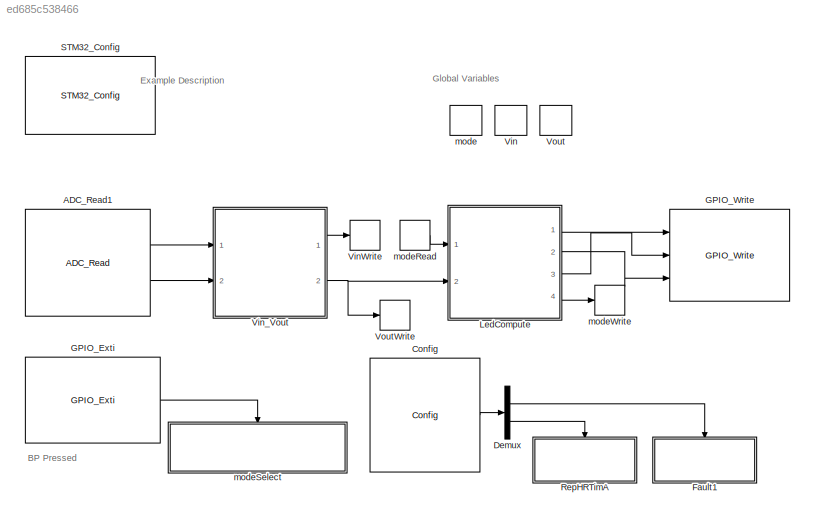
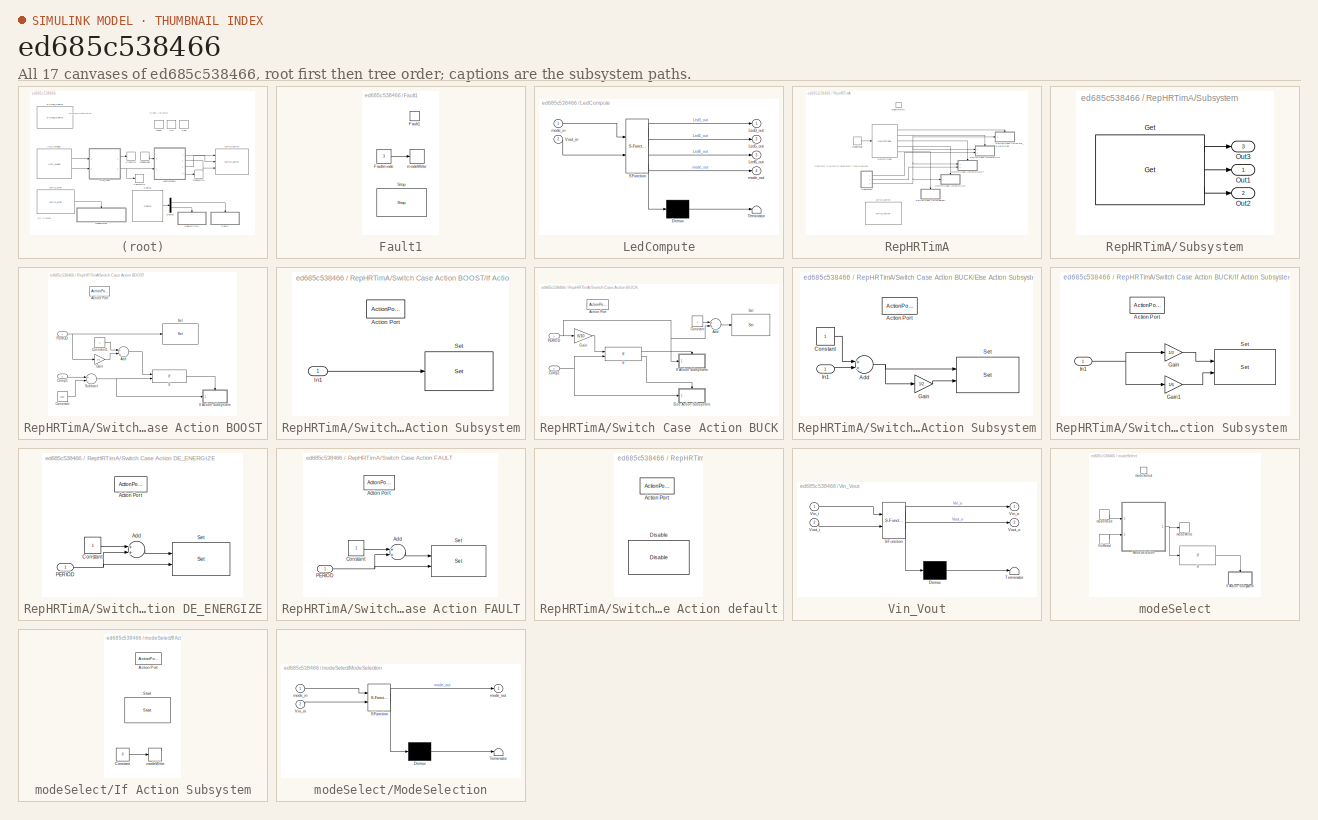
[diagram: thumbnail index - all 17 canvases of the model, root first then tree order]
MODEL slx_ed685c538466
KIND model
CONFIG AbsTol = auto
CONFIG EnableMultiTasking = on
CONFIG FixedStep = auto
CONFIG MaxStep = auto
CONFIG MinStep = auto
CONFIG RelTol = 1e-3
CONFIG SampleTimeConstraint = Unconstrained
CONFIG Solver = FixedStepDiscrete
CONFIG SolverName = FixedStepDiscrete
CONFIG StartTime = 0.0
CONFIG StopTime = 10.0
BLOCK [Reference] ADC_Read1  REF=ADC_Lib/ADC_Read
  Ports = [0, 2]
  SourceBlock = ADC_Lib/ADC_Read
  SourceProductName = Target Support Package - STM32 Adapter
  SourceType = ADC_Read
BLOCK [Reference] Config  REF=HRTIMERS_Lib/Config
  Ports = [0, 1]
  SourceBlock = HRTIMERS_Lib/Config
  SourceProductName = Target Support Package - STM32 Adapter
  SourceType = HRTimer_Config
BLOCK [Demux] Demux
  DisplayOption = bar
  Outputs = 2
  Ports = [1, 2]
BLOCK [SubSystem] Fault1
  Ports = [0, 0, 0, 1]
  RequestExecContextInheritance = off
  TreatAsAtomicUnit = on
BLOCK [TriggerPort] Fault1/Fault1
  Ports = []
  StatesWhenEnabling = held
  TriggerType = function-call
  VariantControl = Variant
BLOCK [Constant] Fault1/Faultmode
  OutDataTypeStr = uint8
  Value = 3
BLOCK [Reference] Fault1/Stop  REF=HRTIMERS_Lib/Stop
  Ports = []
  SourceBlock = HRTIMERS_Lib/Stop
  SourceProductName = Target Support Package - STM32 Adapter
  SourceType = HRTimer_Stop
BLOCK [DataStoreWrite] Fault1/modeWrite
  DataStoreName = mode
  Ports = [1]
BLOCK [Reference] GPIO_Exti  REF=GPIO_Lib/GPIO_Exti
  Ports = [0, 1]
  Priority = 0
  SourceBlock = GPIO_Lib/GPIO_Exti
  SourceProductName = Target Support Package - STM32 Adapter
  SourceType = GPIO_Exti
BLOCK [Reference] GPIO_Write  REF=GPIO_Lib/GPIO_Write
  Ports = [3]
  SourceBlock = GPIO_Lib/GPIO_Write
  SourceProductName = Target Support Package - STM32 Adapter
  SourceType = GPIO_Write
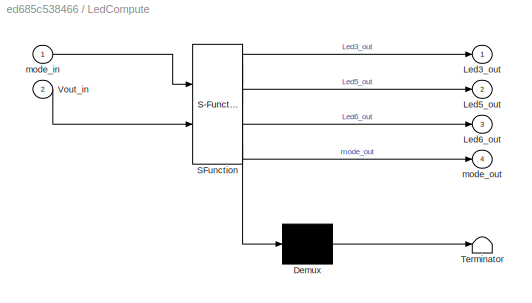
BLOCK [SubSystem] LedCompute
  ErrorFcn = Stateflow.Translate.translate
  PermitHierarchicalResolution = ExplicitOnly
  Ports = [2, 4]
  RequestExecContextInheritance = off
  SFBlockType = MATLAB Function
  TreatAsAtomicUnit = on
BLOCK [Demux] LedCompute/ Demux 
  Outputs = 1
  Ports = [1, 1]
BLOCK [S-Function] LedCompute/ SFunction 
  EnableBusSupport = on
  FunctionName = sf_sfun
  PortCounts = [2 5]
  Ports = [2, 5]
  SFcnIsStateOwnerBlock = off
  SFunctionDeploymentMode = off
  Tag = Stateflow S-Function BuckBoost 3
BLOCK [Terminator] LedCompute/ Terminator 
BLOCK [Outport] LedCompute/Led3_out
  IconDisplay = Port number
BLOCK [Outport] LedCompute/Led5_out
  IconDisplay = Port number
  Port = 2
BLOCK [Outport] LedCompute/Led6_out
  IconDisplay = Port number
  Port = 3
BLOCK [Inport] LedCompute/Vout_in
  IconDisplay = Port number
  Port = 2
BLOCK [Inport] LedCompute/mode_in
  IconDisplay = Port number
BLOCK [Outport] LedCompute/mode_out
  IconDisplay = Port number
  Port = 4
BLOCK [SubSystem] RepHRTimA
  Ports = [0, 0, 0, 1]
  RequestExecContextInheritance = off
  TreatAsAtomicUnit = on
BLOCK [Reference] RepHRTimA/GPIO_Write  REF=GPIO_Lib/GPIO_Write
  Ports = []
  SourceBlock = GPIO_Lib/GPIO_Write
  SourceProductName = Target Support Package - STM32 Adapter
  SourceType = GPIO_Write
BLOCK [TriggerPort] RepHRTimA/RepHRTimA
  Ports = []
  StatesWhenEnabling = held
  TriggerType = function-call
  VariantControl = Variant
BLOCK [SubSystem] RepHRTimA/Subsystem
  Ports = [0, 3]
  RTWSystemCode = Inline
  RequestExecContextInheritance = off
  TreatAsAtomicUnit = on
BLOCK [Reference] RepHRTimA/Subsystem/Get  REF=HRTIMERS_Lib/Get
  Ports = [0, 3]
  Priority = -1
  SourceBlock = HRTIMERS_Lib/Get
  SourceProductName = Target Support Package - STM32 Adapter
  SourceType = HRTimer_Get
BLOCK [Outport] RepHRTimA/Subsystem/Out1
  IconDisplay = Port number
BLOCK [Outport] RepHRTimA/Subsystem/Out2
  IconDisplay = Port number
  Port = 2
BLOCK [Outport] RepHRTimA/Subsystem/Out3
  IconDisplay = Port number
  Port = 3
BLOCK [SwitchCase] RepHRTimA/Switch Case
  CaseConditions = {0,1,2,3}
  Ports = [1, 5]
  Priority = 0
BLOCK [SubSystem] RepHRTimA/Switch Case Action BOOST
  Ports = [2, 0, 0, 0, 0, 0, 0, 1]
  RequestExecContextInheritance = off
  TreatAsAtomicUnit = on
BLOCK [ActionPort] RepHRTimA/Switch Case Action BOOST/Action Port
  ActionType = case
BLOCK [Sum] RepHRTimA/Switch Case Action BOOST/Add
  InputSameDT = off
  OutDataTypeStr = Inherit: Inherit via internal rule
  Ports = [2, 1]
  SaturateOnIntegerOverflow = off
BLOCK [Inport] RepHRTimA/Switch Case Action BOOST/Comp1
  IconDisplay = Port number
  Port = 2
BLOCK [Constant] RepHRTimA/Switch Case Action BOOST/Constant
  Value = 1024
BLOCK [Constant] RepHRTimA/Switch Case Action BOOST/Constant1
BLOCK [Gain] RepHRTimA/Switch Case Action BOOST/Gain
  Gain = 1/2
  OutDataTypeStr = Inherit: Inherit via internal rule
  ParamDataTypeStr = Inherit: Inherit via internal rule
  SaturateOnIntegerOverflow = off
BLOCK [If] RepHRTimA/Switch Case Action BOOST/If
  IfExpression = u2 >= u1
  NumInputs = 2
  Ports = [2, 1]
  ShowElse = off
BLOCK [SubSystem] RepHRTimA/Switch Case Action BOOST/If Action Subsystem
  Ports = [1, 0, 0, 0, 0, 0, 0, 1]
  RequestExecContextInheritance = off
  TreatAsAtomicUnit = on
BLOCK [ActionPort] RepHRTimA/Switch Case Action BOOST/If Action Subsystem/Action Port
  ActionType = then
BLOCK [Inport] RepHRTimA/Switch Case Action BOOST/If Action Subsystem/In1
  IconDisplay = Port number
BLOCK [Reference] RepHRTimA/Switch Case Action BOOST/If Action Subsystem/Set  REF=HRTIMERS_Lib/Set
  Ports = [1]
  SourceBlock = HRTIMERS_Lib/Set
  SourceProductName = Target Support Package - STM32 Adapter
  SourceType = HRTimer_Set
BLOCK [Inport] RepHRTimA/Switch Case Action BOOST/PERIOD
  IconDisplay = Port number
BLOCK [Reference] RepHRTimA/Switch Case Action BOOST/Set  REF=HRTIMERS_Lib/Set
  Ports = [1]
  SourceBlock = HRTIMERS_Lib/Set
  SourceProductName = Target Support Package - STM32 Adapter
  SourceType = HRTimer_Set
BLOCK [Sum] RepHRTimA/Switch Case Action BOOST/Subtract
  InputSameDT = off
  Inputs = +-
  OutDataTypeStr = Inherit: Inherit via internal rule
  Ports = [2, 1]
  SaturateOnIntegerOverflow = off
BLOCK [SubSystem] RepHRTimA/Switch Case Action BUCK
  Ports = [2, 0, 0, 0, 0, 0, 0, 1]
  RequestExecContextInheritance = off
  TreatAsAtomicUnit = on
BLOCK [ActionPort] RepHRTimA/Switch Case Action BUCK/Action Port
  ActionType = case
BLOCK [Sum] RepHRTimA/Switch Case Action BUCK/Add
  InputSameDT = off
  OutDataTypeStr = Inherit: Inherit via internal rule
  Ports = [2, 1]
  SaturateOnIntegerOverflow = off
BLOCK [Inport] RepHRTimA/Switch Case Action BUCK/Comp1
  IconDisplay = Port number
  Port = 2
BLOCK [Constant] RepHRTimA/Switch Case Action BUCK/Constant
BLOCK [SubSystem] RepHRTimA/Switch Case Action BUCK/Else Action Subsystem
  Ports = [1, 0, 0, 0, 0, 0, 0, 1]
  RequestExecContextInheritance = off
  TreatAsAtomicUnit = on
BLOCK [ActionPort] RepHRTimA/Switch Case Action BUCK/Else Action Subsystem/Action Port
  ActionType = else
BLOCK [Sum] RepHRTimA/Switch Case Action BUCK/Else Action Subsystem/Add
  InputSameDT = off
  OutDataTypeStr = Inherit: Inherit via internal rule
  Ports = [2, 1]
  SaturateOnIntegerOverflow = off
BLOCK [Constant] RepHRTimA/Switch Case Action BUCK/Else Action Subsystem/Constant
BLOCK [Gain] RepHRTimA/Switch Case Action BUCK/Else Action Subsystem/Gain
  Gain = 1/2
  OutDataTypeStr = Inherit: Inherit via internal rule
  ParamDataTypeStr = Inherit: Inherit via internal rule
  SaturateOnIntegerOverflow = off
BLOCK [Inport] RepHRTimA/Switch Case Action BUCK/Else Action Subsystem/In1
  IconDisplay = Port number
BLOCK [Reference] RepHRTimA/Switch Case Action BUCK/Else Action Subsystem/Set  REF=HRTIMERS_Lib/Set
  Ports = [2]
  SourceBlock = HRTIMERS_Lib/Set
  SourceProductName = Target Support Package - STM32 Adapter
  SourceType = HRTimer_Set
BLOCK [Gain] RepHRTimA/Switch Case Action BUCK/Gain
  Gain = 6/10
  OutDataTypeStr = Inherit: Inherit via internal rule
  ParamDataTypeStr = Inherit: Inherit via internal rule
  SaturateOnIntegerOverflow = off
BLOCK [If] RepHRTimA/Switch Case Action BUCK/If
  IfExpression = u2 > u1
  NumInputs = 2
  Ports = [2, 2]
BLOCK [SubSystem] RepHRTimA/Switch Case Action BUCK/If Action Subsystem 
  Ports = [1, 0, 0, 0, 0, 0, 0, 1]
  RequestExecContextInheritance = off
  TreatAsAtomicUnit = on
BLOCK [ActionPort] RepHRTimA/Switch Case Action BUCK/If Action Subsystem /Action Port
  ActionType = then
BLOCK [Gain] RepHRTimA/Switch Case Action BUCK/If Action Subsystem /Gain
  Gain = 1/3
  OutDataTypeStr = Inherit: Inherit via internal rule
  ParamDataTypeStr = Inherit: Inherit via internal rule
  SaturateOnIntegerOverflow = off
BLOCK [Gain] RepHRTimA/Switch Case Action BUCK/If Action Subsystem /Gain1
  Gain = 1/6
  OutDataTypeStr = Inherit: Inherit via internal rule
  ParamDataTypeStr = Inherit: Inherit via internal rule
  SaturateOnIntegerOverflow = off
BLOCK [Inport] RepHRTimA/Switch Case Action BUCK/If Action Subsystem /In1
  IconDisplay = Port number
BLOCK [Reference] RepHRTimA/Switch Case Action BUCK/If Action Subsystem /Set  REF=HRTIMERS_Lib/Set
  Ports = [2]
  SourceBlock = HRTIMERS_Lib/Set
  SourceProductName = Target Support Package - STM32 Adapter
  SourceType = HRTimer_Set
BLOCK [Inport] RepHRTimA/Switch Case Action BUCK/PERIOD
  IconDisplay = Port number
BLOCK [Reference] RepHRTimA/Switch Case Action BUCK/Set  REF=HRTIMERS_Lib/Set
  Ports = [1]
  SourceBlock = HRTIMERS_Lib/Set
  SourceProductName = Target Support Package - STM32 Adapter
  SourceType = HRTimer_Set
BLOCK [SubSystem] RepHRTimA/Switch Case Action DE_ENERGIZE
  Ports = [1, 0, 0, 0, 0, 0, 0, 1]
  RequestExecContextInheritance = off
  TreatAsAtomicUnit = on
BLOCK [ActionPort] RepHRTimA/Switch Case Action DE_ENERGIZE/Action Port
  ActionType = case
BLOCK [Sum] RepHRTimA/Switch Case Action DE_ENERGIZE/Add
  InputSameDT = off
  OutDataTypeStr = Inherit: Inherit via internal rule
  Ports = [2, 1]
  SaturateOnIntegerOverflow = off
BLOCK [Constant] RepHRTimA/Switch Case Action DE_ENERGIZE/Constant
BLOCK [Inport] RepHRTimA/Switch Case Action DE_ENERGIZE/PERIOD
  IconDisplay = Port number
BLOCK [Reference] RepHRTimA/Switch Case Action DE_ENERGIZE/Set  REF=HRTIMERS_Lib/Set
  Ports = [2]
  SourceBlock = HRTIMERS_Lib/Set
  SourceProductName = Target Support Package - STM32 Adapter
  SourceType = HRTimer_Set
BLOCK [SubSystem] RepHRTimA/Switch Case Action FAULT
  Ports = [1, 0, 0, 0, 0, 0, 0, 1]
  RequestExecContextInheritance = off
  TreatAsAtomicUnit = on
BLOCK [ActionPort] RepHRTimA/Switch Case Action FAULT/Action Port
  ActionType = case
BLOCK [Sum] RepHRTimA/Switch Case Action FAULT/Add
  InputSameDT = off
  OutDataTypeStr = Inherit: Inherit via internal rule
  Ports = [2, 1]
  SaturateOnIntegerOverflow = off
BLOCK [Constant] RepHRTimA/Switch Case Action FAULT/Constant
BLOCK [Inport] RepHRTimA/Switch Case Action FAULT/PERIOD
  IconDisplay = Port number
BLOCK [Reference] RepHRTimA/Switch Case Action FAULT/Set  REF=HRTIMERS_Lib/Set
  Ports = [2]
  SourceBlock = HRTIMERS_Lib/Set
  SourceProductName = Target Support Package - STM32 Adapter
  SourceType = HRTimer_Set
BLOCK [SubSystem] RepHRTimA/Switch Case Action default
  Ports = [0, 0, 0, 0, 0, 0, 0, 1]
  RequestExecContextInheritance = off
  TreatAsAtomicUnit = on
BLOCK [ActionPort] RepHRTimA/Switch Case Action default/Action Port
  ActionType = default
BLOCK [Reference] RepHRTimA/Switch Case Action default/Disable  REF=HRTIMERS_Lib/Disable
  Ports = []
  SourceBlock = HRTIMERS_Lib/Disable
  SourceProductName = Target Support Package - STM32 Adapter
  SourceType = HRTimer_Disable
BLOCK [DataStoreRead] RepHRTimA/modeRead
  DataStoreName = mode
  Ports = [0, 1]
BLOCK [Reference] STM32_Config  REF=STM32_Config_Lib/STM32_Config
  Ports = []
  Priority = 0
  SourceBlock = STM32_Config_Lib/STM32_Config
  SourceProductName = Target Support Package - STM32 Adapter
  SourceType = STM32_Config
BLOCK [DataStoreMemory] Vin
  DataStoreName = Vin
  OutDataTypeStr = uint32
  OutMax = 5000
  OutMin = 0
  ReadBeforeWriteMsg = warning
  ShowAdditionalParam = off
  WriteAfterReadMsg = warning
  WriteAfterWriteMsg = warning
BLOCK [DataStoreWrite] VinWrite
  DataStoreName = Vin
  Ports = [1]
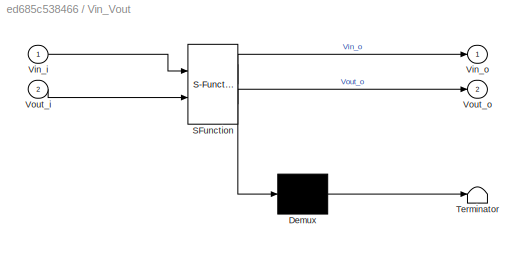
BLOCK [SubSystem] Vin_Vout
  ErrorFcn = Stateflow.Translate.translate
  PermitHierarchicalResolution = ExplicitOnly
  Ports = [2, 2]
  RequestExecContextInheritance = off
  SFBlockType = MATLAB Function
  TreatAsAtomicUnit = on
BLOCK [Demux] Vin_Vout/ Demux 
  Outputs = 1
  Ports = [1, 1]
BLOCK [S-Function] Vin_Vout/ SFunction 
  EnableBusSupport = on
  FunctionName = sf_sfun
  PortCounts = [2 3]
  Ports = [2, 3]
  SFcnIsStateOwnerBlock = off
  SFunctionDeploymentMode = off
  Tag = Stateflow S-Function BuckBoost 2
BLOCK [Terminator] Vin_Vout/ Terminator 
BLOCK [Inport] Vin_Vout/Vin_i
  IconDisplay = Port number
BLOCK [Outport] Vin_Vout/Vin_o
  IconDisplay = Port number
BLOCK [Inport] Vin_Vout/Vout_i
  IconDisplay = Port number
  Port = 2
BLOCK [Outport] Vin_Vout/Vout_o
  IconDisplay = Port number
  Port = 2
BLOCK [DataStoreMemory] Vout
  DataStoreName = Vout
  OutDataTypeStr = uint32
  OutMin = 0
  ReadBeforeWriteMsg = warning
  ShowAdditionalParam = off
  WriteAfterReadMsg = warning
  WriteAfterWriteMsg = warning
BLOCK [DataStoreWrite] VoutWrite
  DataStoreName = Vout
  Ports = [1]
BLOCK [DataStoreMemory] mode
  DataStoreName = mode
  OutDataTypeStr = uint8
  OutMax = 3
  OutMin = 0
  ReadBeforeWriteMsg = warning
  ShowAdditionalParam = off
  WriteAfterReadMsg = warning
  WriteAfterWriteMsg = warning
BLOCK [DataStoreRead] modeRead
  DataStoreName = mode
  Ports = [0, 1]
BLOCK [SubSystem] modeSelect
  Ports = [0, 0, 0, 1]
  RequestExecContextInheritance = off
  TreatAsAtomicUnit = on
BLOCK [If] modeSelect/If
  IfExpression = u1 == 3
  Ports = [1, 1]
  ShowElse = off
BLOCK [SubSystem] modeSelect/If Action Subsystem
  Ports = [0, 0, 0, 0, 0, 0, 0, 1]
  RequestExecContextInheritance = off
  TreatAsAtomicUnit = on
BLOCK [ActionPort] modeSelect/If Action Subsystem/Action Port
  ActionType = then
BLOCK [Constant] modeSelect/If Action Subsystem/Constant
  OutDataTypeStr = uint8
  Value = 0
BLOCK [Reference] modeSelect/If Action Subsystem/Start  REF=HRTIMERS_Lib/Start
  Ports = []
  SourceBlock = HRTIMERS_Lib/Start
  SourceProductName = Target Support Package - STM32 Adapter
  SourceType = HRTimer_Start
BLOCK [DataStoreWrite] modeSelect/If Action Subsystem/modeWrite
  DataStoreName = mode
  Ports = [1]
BLOCK [SubSystem] modeSelect/ModeSelection
  ErrorFcn = Stateflow.Translate.translate
  PermitHierarchicalResolution = ExplicitOnly
  Ports = [2, 1]
  RequestExecContextInheritance = off
  SFBlockType = MATLAB Function
  TreatAsAtomicUnit = on
BLOCK [Demux] modeSelect/ModeSelection/ Demux 
  Outputs = 1
  Ports = [1, 1]
BLOCK [S-Function] modeSelect/ModeSelection/ SFunction 
  EnableBusSupport = on
  FunctionName = sf_sfun
  PortCounts = [2 2]
  Ports = [2, 2]
  SFcnIsStateOwnerBlock = off
  SFunctionDeploymentMode = off
  Tag = Stateflow S-Function BuckBoost 1
BLOCK [Terminator] modeSelect/ModeSelection/ Terminator 
BLOCK [Inport] modeSelect/ModeSelection/Vin_in
  IconDisplay = Port number
  Port = 2
BLOCK [Inport] modeSelect/ModeSelection/mode_in
  IconDisplay = Port number
BLOCK [Outport] modeSelect/ModeSelection/mode_out
  IconDisplay = Port number
BLOCK [DataStoreRead] modeSelect/VinRead
  DataStoreName = Vin
  Ports = [0, 1]
BLOCK [DataStoreRead] modeSelect/modeRead
  DataStoreName = mode
  DialogController = Simulink.DDGSource
  Ports = [0, 1]
BLOCK [TriggerPort] modeSelect/modeSelect
  Ports = []
  StatesWhenEnabling = held
  TriggerType = function-call
  VariantControl = Variant
BLOCK [DataStoreWrite] modeSelect/modeWrite
  DataStoreName = mode
  Ports = [1]
BLOCK [DataStoreWrite] modeWrite
  DataStoreName = mode
  Ports = [1]
ANNOTATION (root): Example Description
ANNOTATION (root): BP Pressed
ANNOTATION (root): Global Variables
ANNOTATION RepHRTimA: Subsystem to be sure of generated C code placement
LINE ADC_Read1:1 -> Vin_Vout:1
LINE ADC_Read1:2 -> Vin_Vout:2
LINE Config:1 -> Demux:1
LINE Demux:1 -> Fault1:trigger
LINE Demux:2 -> RepHRTimA:trigger
LINE Fault1/Faultmode:1 -> Fault1/modeWrite:1
LINE GPIO_Exti:1 -> modeSelect:trigger
LINE LedCompute:1 -> GPIO_Write:1
LINE LedCompute:2 -> GPIO_Write:3
LINE LedCompute:3 -> GPIO_Write:2
LINE LedCompute:4 -> modeWrite:1
LINE RepHRTimA/Subsystem/Get:1 -> RepHRTimA/Subsystem/Out3:1
LINE RepHRTimA/Subsystem/Get:2 -> RepHRTimA/Subsystem/Out1:1
LINE RepHRTimA/Subsystem/Get:3 -> RepHRTimA/Subsystem/Out2:1
LINE RepHRTimA/Subsystem:1 -> RepHRTimA/Switch Case Action BUCK:2
LINE RepHRTimA/Subsystem:2 -> RepHRTimA/Switch Case Action BOOST:2
NET RepHRTimA/Subsystem:3 -> RepHRTimA/Switch Case Action BOOST:1, RepHRTimA/Switch Case Action BUCK:1, RepHRTimA/Switch Case Action DE_ENERGIZE:1, RepHRTimA/Switch Case Action FAULT:1
LINE RepHRTimA/Switch Case Action BOOST/Add:1 -> RepHRTimA/Switch Case Action BOOST/If:1
LINE RepHRTimA/Switch Case Action BOOST/Comp1:1 -> RepHRTimA/Switch Case Action BOOST/Subtract:1
LINE RepHRTimA/Switch Case Action BOOST/Constant1:1 -> RepHRTimA/Switch Case Action BOOST/Add:1
LINE RepHRTimA/Switch Case Action BOOST/Constant:1 -> RepHRTimA/Switch Case Action BOOST/Subtract:2
LINE RepHRTimA/Switch Case Action BOOST/Gain:1 -> RepHRTimA/Switch Case Action BOOST/Add:2
LINE RepHRTimA/Switch Case Action BOOST/If Action Subsystem/In1:1 -> RepHRTimA/Switch Case Action BOOST/If Action Subsystem/Set:1
LINE RepHRTimA/Switch Case Action BOOST/If:1 -> RepHRTimA/Switch Case Action BOOST/If Action Subsystem:ifaction
NET RepHRTimA/Switch Case Action BOOST/PERIOD:1 -> RepHRTimA/Switch Case Action BOOST/Gain:1, RepHRTimA/Switch Case Action BOOST/Set:1
NET RepHRTimA/Switch Case Action BOOST/Subtract:1 -> RepHRTimA/Switch Case Action BOOST/If Action Subsystem:1, RepHRTimA/Switch Case Action BOOST/If:2
LINE RepHRTimA/Switch Case Action BUCK/Add:1 -> RepHRTimA/Switch Case Action BUCK/Set:1
NET RepHRTimA/Switch Case Action BUCK/Comp1:1 -> RepHRTimA/Switch Case Action BUCK/Else Action Subsystem:1, RepHRTimA/Switch Case Action BUCK/If:2
LINE RepHRTimA/Switch Case Action BUCK/Constant:1 -> RepHRTimA/Switch Case Action BUCK/Add:1
NET RepHRTimA/Switch Case Action BUCK/Else Action Subsystem/Add:1 -> RepHRTimA/Switch Case Action BUCK/Else Action Subsystem/Gain:1, RepHRTimA/Switch Case Action BUCK/Else Action Subsystem/Set:1
LINE RepHRTimA/Switch Case Action BUCK/Else Action Subsystem/Constant:1 -> RepHRTimA/Switch Case Action BUCK/Else Action Subsystem/Add:1
LINE RepHRTimA/Switch Case Action BUCK/Else Action Subsystem/Gain:1 -> RepHRTimA/Switch Case Action BUCK/Else Action Subsystem/Set:2
LINE RepHRTimA/Switch Case Action BUCK/Else Action Subsystem/In1:1 -> RepHRTimA/Switch Case Action BUCK/Else Action Subsystem/Add:2
LINE RepHRTimA/Switch Case Action BUCK/Gain:1 -> RepHRTimA/Switch Case Action BUCK/If:1
LINE RepHRTimA/Switch Case Action BUCK/If Action Subsystem /Gain1:1 -> RepHRTimA/Switch Case Action BUCK/If Action Subsystem /Set:2
LINE RepHRTimA/Switch Case Action BUCK/If Action Subsystem /Gain:1 -> RepHRTimA/Switch Case Action BUCK/If Action Subsystem /Set:1
NET RepHRTimA/Switch Case Action BUCK/If Action Subsystem /In1:1 -> RepHRTimA/Switch Case Action BUCK/If Action Subsystem /Gain1:1, RepHRTimA/Switch Case Action BUCK/If Action Subsystem /Gain:1
LINE RepHRTimA/Switch Case Action BUCK/If:1 -> RepHRTimA/Switch Case Action BUCK/If Action Subsystem :ifaction
LINE RepHRTimA/Switch Case Action BUCK/If:2 -> RepHRTimA/Switch Case Action BUCK/Else Action Subsystem:ifaction
NET RepHRTimA/Switch Case Action BUCK/PERIOD:1 -> RepHRTimA/Switch Case Action BUCK/Add:2, RepHRTimA/Switch Case Action BUCK/Gain:1, RepHRTimA/Switch Case Action BUCK/If Action Subsystem :1
LINE RepHRTimA/Switch Case Action DE_ENERGIZE/Add:1 -> RepHRTimA/Switch Case Action DE_ENERGIZE/Set:1
LINE RepHRTimA/Switch Case Action DE_ENERGIZE/Constant:1 -> RepHRTimA/Switch Case Action DE_ENERGIZE/Add:1
NET RepHRTimA/Switch Case Action DE_ENERGIZE/PERIOD:1 -> RepHRTimA/Switch Case Action DE_ENERGIZE/Add:2, RepHRTimA/Switch Case Action DE_ENERGIZE/Set:2
LINE RepHRTimA/Switch Case Action FAULT/Add:1 -> RepHRTimA/Switch Case Action FAULT/Set:1
LINE RepHRTimA/Switch Case Action FAULT/Constant:1 -> RepHRTimA/Switch Case Action FAULT/Add:1
NET RepHRTimA/Switch Case Action FAULT/PERIOD:1 -> RepHRTimA/Switch Case Action FAULT/Add:2, RepHRTimA/Switch Case Action FAULT/Set:2
LINE RepHRTimA/Switch Case:1 -> RepHRTimA/Switch Case Action DE_ENERGIZE:ifaction
LINE RepHRTimA/Switch Case:2 -> RepHRTimA/Switch Case Action BUCK:ifaction
LINE RepHRTimA/Switch Case:3 -> RepHRTimA/Switch Case Action BOOST:ifaction
LINE RepHRTimA/Switch Case:4 -> RepHRTimA/Switch Case Action FAULT:ifaction
LINE RepHRTimA/Switch Case:5 -> RepHRTimA/Switch Case Action default:ifaction
LINE RepHRTimA/modeRead:1 -> RepHRTimA/Switch Case:1
LINE Vin_Vout:1 -> VinWrite:1
NET Vin_Vout:2 -> LedCompute:2, VoutWrite:1
LINE modeRead:1 -> LedCompute:1
LINE modeSelect/If Action Subsystem/Constant:1 -> modeSelect/If Action Subsystem/modeWrite:1
LINE modeSelect/If:1 -> modeSelect/If Action Subsystem:ifaction
NET modeSelect/ModeSelection:1 -> modeSelect/If:1, modeSelect/modeWrite:1
LINE modeSelect/VinRead:1 -> modeSelect/ModeSelection:2
LINE modeSelect/modeRead:1 -> modeSelect/ModeSelection:1
note: NET lines group one-source signal fan-out (src -> all destinations, sorted); 1:1 wires keep LINE
CHART modeSelect/ModeSelection states=1 transitions=1
  STATE_LABEL 'eML_blk_kernel()'
  STATE_LABEL 'SCRIPT:\nfunction mode_out = ModeSelection(mode_in, Vin_in)\n%#codegen\nmode_out = mode_in;\nswitch mode_in\n    case 0 \n        %DE_ENERGISE mode\n        mode_out = uint8(0);\n    case 1\n        %BUCK mode\n        if(Vin_in < uint32(5000))\n            %Change to BOOST mode\n            mode_out = uint8(2);\n        end        \n    case 2\n        %BOOST mode\n        %Change to DE_ENERGIZE mode\n        mod...<+118ch>'
CHART Vin_Vout states=1 transitions=1
  STATE_LABEL 'eML_blk_kernel()'
  STATE_LABEL 'SCRIPT:\nfunction [Vin_o,Vout_o] = VinVoutCompute(Vin_i,Vout_i)\n%#codegen\n%VDDA = 3300\n\nVin_o = uint32(((Vin_i * 3300)/4095)*497/100);\nVout_o = uint32(((Vout_i * 3300)/4095)*503/100);'
CHART LedCompute states=1 transitions=1
  STATE_LABEL 'eML_blk_kernel()'
  STATE_LABEL 'SCRIPT:\nfunction [Led3_out,Led5_out,Led6_out,mode_out] = LedCompute(mode_in,Vout_in)\n%#codegen\n%Initialization\nLed3_out = uint8(0);\nLed5_out = uint8(0);\nLed6_out = uint8(0);        \nmode_out = mode_in;            \nswitch mode_in\n    case 0\n         %DE_ENERGISE mode\n        if(Vout_in < uint32(2500))\n            %Change to BUCK mode\n            mode_out = uint8(1);            \n        end \n       ...<+509ch>'
